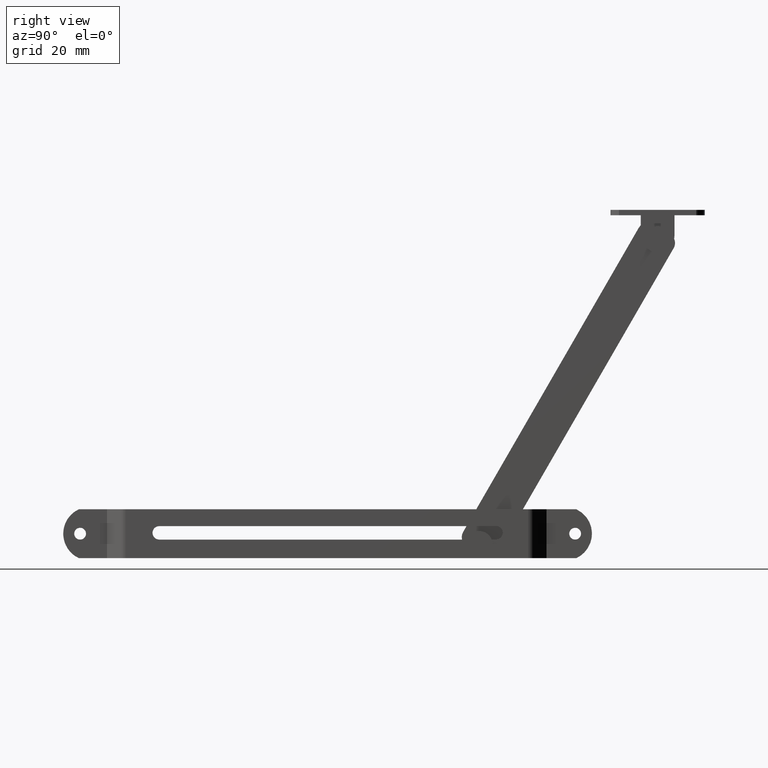
[diagram: clean part render]
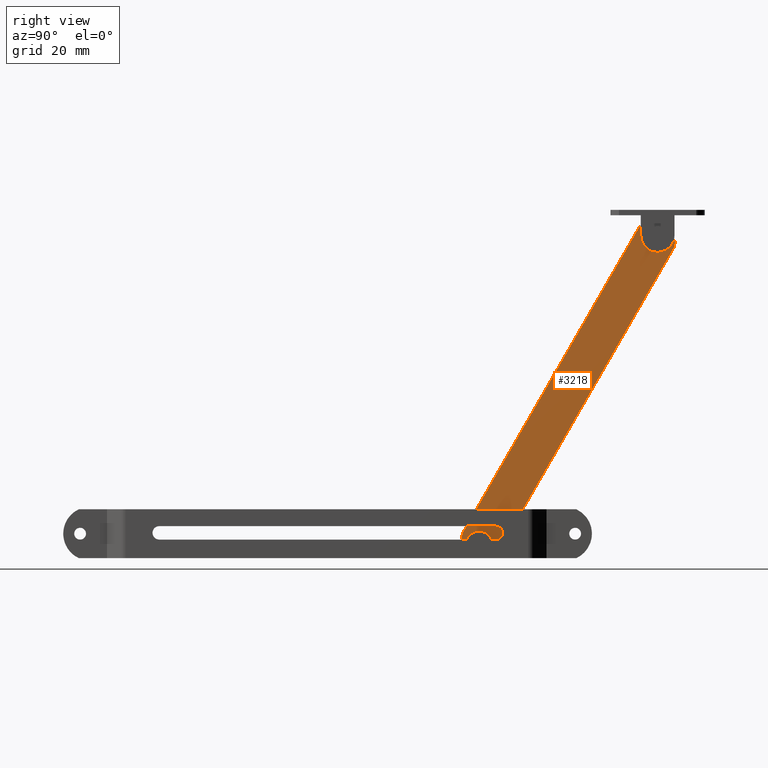
[diagram: same view with one face highlighted and labeled with its STEP entity id]
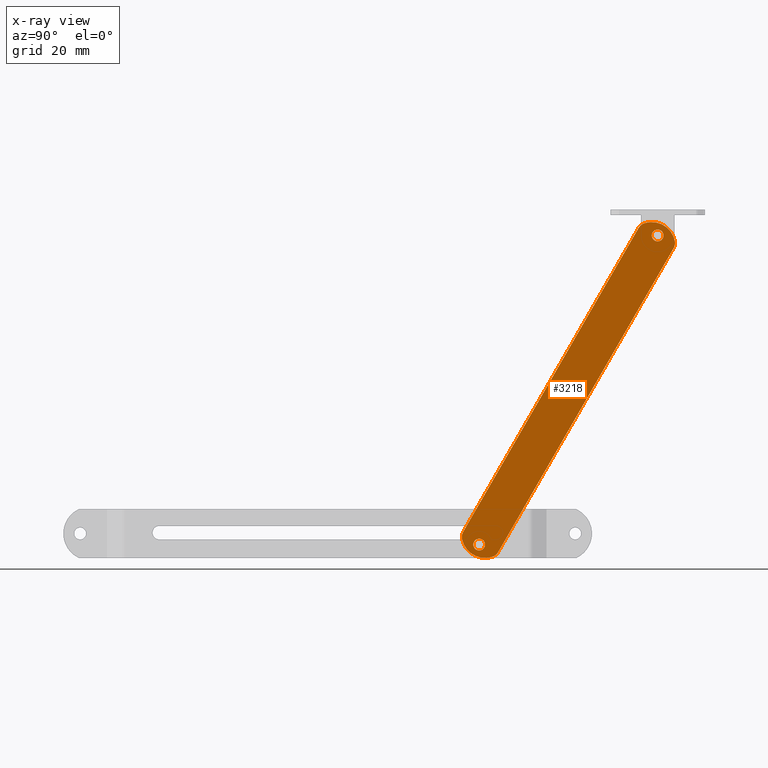
[diagram: x-ray of the same camera — body ghosted, the highlighted face saturated]
A machine part, right view. The second image highlights one B-rep face of the part: STEP entity #3218.
The next image is the same camera in x-ray: the body ghosted, the highlighted face saturated — about 0% of this face is hidden behind the body in this view.
In plain terms, the highlighted face is a freeform B-spline surface patch.
Its self-contained STEP definition (entity closure, byte-faithful):
#2741=CARTESIAN_POINT('',(4.000000000000116,22.762233328882491,88.755256439264059));
#2742=VERTEX_POINT('',#2741);
#2743=CARTESIAN_POINT('',(4.000000000000116,24.500000000000000,86.798696528455693));
#2744=VERTEX_POINT('',#2743);
#2745=CARTESIAN_POINT('',(4.000000000000116,22.762233328882491,88.755256439264059));
#2746=CARTESIAN_POINT('',(4.000000000000116,22.749999999999996,88.652338738007259));
#2747=CARTESIAN_POINT('',(4.000000000000116,22.750000000000000,88.548696528455693));
#2748=CARTESIAN_POINT('',(4.000000000000116,22.750000000000011,86.798696528455693));
#2749=CARTESIAN_POINT('',(4.000000000000116,24.500000000000000,86.798696528455693));
#2757=(BOUNDED_CURVE()B_SPLINE_CURVE(2,(#2745,#2746,#2747,#2748,#2749),.UNSPECIFIED.,.F.,.U.)B_SPLINE_CURVE_WITH_KNOTS((3,2,3),(0.229562473484709,0.250000000000000,0.500000000000000),.UNSPECIFIED.)CURVE()GEOMETRIC_REPRESENTATION_ITEM()RATIONAL_B_SPLINE_CURVE((0.956026754127251,0.976055948297405,1.0,0.707106781186547,1.0))REPRESENTATION_ITEM(''));
#2758=EDGE_CURVE('',#2742,#2744,#2757,.T.);
#2760=CARTESIAN_POINT('',(4.000000000000116,26.246735897101530,88.441861582034065));
#2761=VERTEX_POINT('',#2760);
#2762=CARTESIAN_POINT('',(4.000000000000116,24.500000000000000,86.798696528455693));
#2763=CARTESIAN_POINT('',(4.000000000000116,26.146235612863073,86.798696528455707));
#2764=CARTESIAN_POINT('',(4.000000000000116,26.246735897101534,88.441861582034065));
#2772=(BOUNDED_CURVE()B_SPLINE_CURVE(2,(#2762,#2763,#2764),.UNSPECIFIED.,.F.,.U.)B_SPLINE_CURVE_WITH_KNOTS((3,3),(0.500000000000000,0.739332961800285),.UNSPECIFIED.)CURVE()GEOMETRIC_REPRESENTATION_ITEM()RATIONAL_B_SPLINE_CURVE((1.0,0.719603993800630,0.976072040726590))REPRESENTATION_ITEM(''));
#2773=EDGE_CURVE('',#2744,#2761,#2772,.T.);
#2840=CARTESIAN_POINT('',(4.000000000000116,24.500000000000000,90.298696528455693));
#2841=VERTEX_POINT('',#2840);
#2842=CARTESIAN_POINT('',(4.000000000000116,24.500000000000000,90.298696528455693));
#2843=CARTESIAN_POINT('',(4.000000000000116,22.945694579871624,90.298696528455693));
#2844=CARTESIAN_POINT('',(4.000000000000116,22.762233328882491,88.755256439264059));
#2852=(BOUNDED_CURVE()B_SPLINE_CURVE(2,(#2842,#2843,#2844),.UNSPECIFIED.,.F.,.U.)B_SPLINE_CURVE_WITH_KNOTS((3,3),(0.0,0.229562473484709),.UNSPECIFIED.)CURVE()GEOMETRIC_REPRESENTATION_ITEM()RATIONAL_B_SPLINE_CURVE((1.0,0.731050832889143,0.956026754127251))REPRESENTATION_ITEM(''));
#2853=EDGE_CURVE('',#2841,#2742,#2852,.T.);
#2887=CARTESIAN_POINT('',(4.000000000000116,26.246735897101527,88.441861582034065));
#2888=CARTESIAN_POINT('',(4.000000000000116,26.250000000000004,88.495229190441250));
#2889=CARTESIAN_POINT('',(4.000000000000116,26.250000000000000,88.548696528455693));
#2890=CARTESIAN_POINT('',(4.000000000000116,26.250000000000000,90.298696528455693));
#2891=CARTESIAN_POINT('',(4.000000000000116,24.500000000000000,90.298696528455693));
#2899=(BOUNDED_CURVE()B_SPLINE_CURVE(2,(#2887,#2888,#2889,#2890,#2891),.UNSPECIFIED.,.F.,.U.)B_SPLINE_CURVE_WITH_KNOTS((3,2,3),(0.739332961800286,0.750000000000000,1.0),.UNSPECIFIED.)CURVE()GEOMETRIC_REPRESENTATION_ITEM()RATIONAL_B_SPLINE_CURVE((0.976072040726592,0.987502787385919,1.0,0.707106781186547,1.0))REPRESENTATION_ITEM(''));
#2900=EDGE_CURVE('',#2761,#2841,#2899,.T.);
#2927=CARTESIAN_POINT('',(4.000000000000116,-30.237766671117509,-3.043440089191623));
#2928=VERTEX_POINT('',#2927);
#2929=CARTESIAN_POINT('',(4.000000000000116,-28.500000000000000,-5.0));
#2930=VERTEX_POINT('',#2929);
#2931=CARTESIAN_POINT('',(4.000000000000116,-30.237766671117516,-3.043440089191623));
#2932=CARTESIAN_POINT('',(4.000000000000116,-30.250000000000007,-3.146357790448426));
#2933=CARTESIAN_POINT('',(4.000000000000116,-30.250000000000000,-3.250000000000000));
#2934=CARTESIAN_POINT('',(4.000000000000116,-30.250000000000011,-4.999999999999999));
#2935=CARTESIAN_POINT('',(4.000000000000116,-28.500000000000000,-5.0));
#2943=(BOUNDED_CURVE()B_SPLINE_CURVE(2,(#2931,#2932,#2933,#2934,#2935),.UNSPECIFIED.,.F.,.U.)B_SPLINE_CURVE_WITH_KNOTS((3,2,3),(0.229562473484708,0.250000000000000,0.500000000000000),.UNSPECIFIED.)CURVE()GEOMETRIC_REPRESENTATION_ITEM()RATIONAL_B_SPLINE_CURVE((0.956026754127250,0.976055948297404,1.0,0.707106781186547,1.0))REPRESENTATION_ITEM(''));
#2944=EDGE_CURVE('',#2928,#2930,#2943,.T.);
#2946=CARTESIAN_POINT('',(4.000000000000116,-26.753264102898470,-3.356834946421632));
#2947=VERTEX_POINT('',#2946);
#2948=CARTESIAN_POINT('',(4.000000000000116,-28.500000000000000,-5.0));
#2949=CARTESIAN_POINT('',(4.000000000000116,-26.853764387136927,-5.0));
#2950=CARTESIAN_POINT('',(4.000000000000116,-26.753264102898470,-3.356834946421632));
#2958=(BOUNDED_CURVE()B_SPLINE_CURVE(2,(#2948,#2949,#2950),.UNSPECIFIED.,.F.,.U.)B_SPLINE_CURVE_WITH_KNOTS((3,3),(0.500000000000000,0.739332961800285),.UNSPECIFIED.)CURVE()GEOMETRIC_REPRESENTATION_ITEM()RATIONAL_B_SPLINE_CURVE((1.0,0.719603993800630,0.976072040726590))REPRESENTATION_ITEM(''));
#2959=EDGE_CURVE('',#2930,#2947,#2958,.T.);
#3026=CARTESIAN_POINT('',(4.000000000000116,-28.500000000000000,-1.500000000000000));
#3027=VERTEX_POINT('',#3026);
#3028=CARTESIAN_POINT('',(4.000000000000116,-28.500000000000000,-1.500000000000000));
#3029=CARTESIAN_POINT('',(4.000000000000116,-30.054305420128379,-1.500000000000000));
#3030=CARTESIAN_POINT('',(4.000000000000116,-30.237766671117512,-3.043440089191623));
#3038=(BOUNDED_CURVE()B_SPLINE_CURVE(2,(#3028,#3029,#3030),.UNSPECIFIED.,.F.,.U.)B_SPLINE_CURVE_WITH_KNOTS((3,3),(0.0,0.229562473484708),.UNSPECIFIED.)CURVE()GEOMETRIC_REPRESENTATION_ITEM()RATIONAL_B_SPLINE_CURVE((1.0,0.731050832889144,0.956026754127249))REPRESENTATION_ITEM(''));
#3039=EDGE_CURVE('',#3027,#2928,#3038,.T.);
#3073=CARTESIAN_POINT('',(4.000000000000116,-26.753264102898470,-3.356834946421632));
#3074=CARTESIAN_POINT('',(4.000000000000116,-26.750000000000004,-3.303467338014431));
#3075=CARTESIAN_POINT('',(4.000000000000116,-26.750000000000000,-3.250000000000000));
#3076=CARTESIAN_POINT('',(4.000000000000116,-26.750000000000007,-1.500000000000000));
#3077=CARTESIAN_POINT('',(4.000000000000116,-28.500000000000000,-1.500000000000000));
#3085=(BOUNDED_CURVE()B_SPLINE_CURVE(2,(#3073,#3074,#3075,#3076,#3077),.UNSPECIFIED.,.F.,.U.)B_SPLINE_CURVE_WITH_KNOTS((3,2,3),(0.739332961800286,0.750000000000000,1.0),.UNSPECIFIED.)CURVE()GEOMETRIC_REPRESENTATION_ITEM()RATIONAL_B_SPLINE_CURVE((0.976072040726592,0.987502787385919,1.0,0.707106781186547,1.0))REPRESENTATION_ITEM(''));
#3086=EDGE_CURVE('',#2947,#3027,#3085,.T.);
#3091=CARTESIAN_POINT('',(4.000000000000116,-36.834805309068749,97.498608147795423));
#3092=CARTESIAN_POINT('',(4.000000000000116,32.834818790672337,97.498608147795423));
#3093=CARTESIAN_POINT('',(4.000000000000116,-36.834805309068749,-12.199905456743769));
#3094=CARTESIAN_POINT('',(4.000000000000116,32.834818790672337,-12.199905456743769));
#3095=B_SPLINE_SURFACE_WITH_KNOTS('',1,1,((#3091,#3093),(#3092,#3094)),.UNSPECIFIED.,.F.,.F.,.U.,(2,2),(2,2),(0.0,69.669624099741100),(0.0,109.698513604539200),.UNSPECIFIED.);
#3096=CARTESIAN_POINT('',(4.000000000000116,18.876715867186249,90.808899136034910));
#3097=VERTEX_POINT('',#3096);
#3098=CARTESIAN_POINT('',(4.000000000000116,-33.270734013043949,0.486848577463162));
#3099=VERTEX_POINT('',#3098);
#3100=CARTESIAN_POINT('',(4.000000000000116,18.876715867186249,90.808899136034910));
#3101=CARTESIAN_POINT('',(4.000000000000116,-33.270734013043949,0.486848577463162));
#3102=QUASI_UNIFORM_CURVE('',1,(#3100,#3101),.UNSPECIFIED.,.F.,.U.);
#3103=EDGE_CURVE('',#3097,#3099,#3102,.T.);
#3104=ORIENTED_EDGE('',*,*,#3103,.T.);
#3105=CARTESIAN_POINT('',(4.000000000000116,-33.611665901296149,-1.603658880000220));
#3106=VERTEX_POINT('',#3105);
#3107=CARTESIAN_POINT('',(4.000000000000116,-33.270734013043942,0.486848577463155));
#3108=CARTESIAN_POINT('',(4.000000000000116,-33.835588970110109,-0.494085939965296));
#3109=CARTESIAN_POINT('',(4.000000000000116,-33.611665901296142,-1.603658880000217));
#3117=(BOUNDED_CURVE()B_SPLINE_CURVE(2,(#3107,#3108,#3109),.UNSPECIFIED.,.F.,.U.)CURVE()GEOMETRIC_REPRESENTATION_ITEM()QUASI_UNIFORM_CURVE()RATIONAL_B_SPLINE_CURVE((1.0,0.935615424583419,1.0))REPRESENTATION_ITEM(''));
#3118=EDGE_CURVE('',#3099,#3106,#3117,.T.);
#3119=ORIENTED_EDGE('',*,*,#3118,.T.);
#3120=CARTESIAN_POINT('',(4.000000000000116,-24.518399130458249,-6.853656767779230));
#3121=VERTEX_POINT('',#3120);
#3122=CARTESIAN_POINT('',(4.000000000000116,-33.611665901296149,-1.603658880000220));
#3123=CARTESIAN_POINT('',(4.000000000000116,-32.986564257523483,-4.701125228953905));
#3124=CARTESIAN_POINT('',(4.000000000000116,-30.249999147351978,-6.281081318767616));
#3125=CARTESIAN_POINT('',(4.000000000000116,-27.513434037180470,-7.861037408581329));
#3126=CARTESIAN_POINT('',(4.000000000000116,-24.518399130458238,-6.853656767779274));
#3134=(BOUNDED_CURVE()B_SPLINE_CURVE(2,(#3122,#3123,#3124,#3125,#3126),.UNSPECIFIED.,.F.,.U.)B_SPLINE_CURVE_WITH_KNOTS((3,2,3),(0.0,0.500000000000000,1.0),.UNSPECIFIED.)CURVE()GEOMETRIC_REPRESENTATION_ITEM()RATIONAL_B_SPLINE_CURVE((1.0,0.911437859898743,1.0,0.911437859898743,1.0))REPRESENTATION_ITEM(''));
#3135=EDGE_CURVE('',#3106,#3121,#3134,.T.);
#3136=ORIENTED_EDGE('',*,*,#3135,.T.);
#3137=CARTESIAN_POINT('',(4.000000000000116,-22.870826358273149,-5.499931659359730));
#3138=VERTEX_POINT('',#3137);
#3139=CARTESIAN_POINT('',(4.000000000000116,-24.518399130458249,-6.853656767779230));
#3140=CARTESIAN_POINT('',(4.000000000000116,-23.437255528363767,-6.490014403721759));
#3141=CARTESIAN_POINT('',(4.000000000000116,-22.870826358273149,-5.499931659359730));
#3149=(BOUNDED_CURVE()B_SPLINE_CURVE(2,(#3139,#3140,#3141),.UNSPECIFIED.,.F.,.U.)CURVE()GEOMETRIC_REPRESENTATION_ITEM()QUASI_UNIFORM_CURVE()RATIONAL_B_SPLINE_CURVE((1.0,0.934715189352757,1.0))REPRESENTATION_ITEM(''));
#3150=EDGE_CURVE('',#3121,#3138,#3149,.T.);
#3151=ORIENTED_EDGE('',*,*,#3150,.T.);
#3152=CARTESIAN_POINT('',(4.000000000000116,29.269043000000000,84.808898999999997));
#3153=VERTEX_POINT('',#3152);
#3154=CARTESIAN_POINT('',(4.000000000000116,-22.870826358273149,-5.499931659359730));
#3155=CARTESIAN_POINT('',(4.000000000000116,29.269043000000000,84.808898999999997));
#3156=QUASI_UNIFORM_CURVE('',1,(#3154,#3155),.UNSPECIFIED.,.F.,.U.);
#3157=EDGE_CURVE('',#3138,#3153,#3156,.T.);
#3158=ORIENTED_EDGE('',*,*,#3157,.T.);
#3159=CARTESIAN_POINT('',(4.000000000000116,29.611672901296050,86.902364880000107));
#3160=VERTEX_POINT('',#3159);
#3161=CARTESIAN_POINT('',(4.000000000000116,29.269043000000000,84.808898999999997));
#3162=CARTESIAN_POINT('',(4.000000000000116,29.835984399760708,85.790879998287480));
#3163=CARTESIAN_POINT('',(4.000000000000116,29.611672901296050,86.902364880000107));
#3171=(BOUNDED_CURVE()B_SPLINE_CURVE(2,(#3161,#3162,#3163),.UNSPECIFIED.,.F.,.U.)CURVE()GEOMETRIC_REPRESENTATION_ITEM()QUASI_UNIFORM_CURVE()RATIONAL_B_SPLINE_CURVE((1.0,0.935414576505110,1.0))REPRESENTATION_ITEM(''));
#3172=EDGE_CURVE('',#3153,#3160,#3171,.T.);
#3173=ORIENTED_EDGE('',*,*,#3172,.T.);
#3174=CARTESIAN_POINT('',(4.000000000000116,20.518399130458150,92.152362767779110));
#3175=VERTEX_POINT('',#3174);
#3176=CARTESIAN_POINT('',(4.000000000000116,29.611672901296050,86.902364880000107));
#3177=CARTESIAN_POINT('',(4.000000000000116,28.986570885729016,89.999831579057300));
#3178=CARTESIAN_POINT('',(4.000000000000116,26.250003382653912,91.579787706297623));
#3179=CARTESIAN_POINT('',(4.000000000000116,23.513435879578807,93.159743833537931));
#3180=CARTESIAN_POINT('',(4.000000000000116,20.518399130458150,92.152362767779110));
#3188=(BOUNDED_CURVE()B_SPLINE_CURVE(2,(#3176,#3177,#3178,#3179,#3180),.UNSPECIFIED.,.F.,.U.)B_SPLINE_CURVE_WITH_KNOTS((3,2,3),(0.0,0.500000000000000,1.0),.UNSPECIFIED.)CURVE()GEOMETRIC_REPRESENTATION_ITEM()RATIONAL_B_SPLINE_CURVE((1.0,0.911437839550877,1.0,0.911437839550877,1.0))REPRESENTATION_ITEM(''));
#3189=EDGE_CURVE('',#3160,#3175,#3188,.T.);
#3190=ORIENTED_EDGE('',*,*,#3189,.T.);
#3191=CARTESIAN_POINT('',(4.000000000000116,20.518399130458150,92.152362767779110));
#3192=CARTESIAN_POINT('',(4.000000000000116,19.443665137691561,91.790880649074538));
#3193=CARTESIAN_POINT('',(4.000000000000116,18.876715867186249,90.808899136034910));
#3201=(BOUNDED_CURVE()B_SPLINE_CURVE(2,(#3191,#3192,#3193),.UNSPECIFIED.,.F.,.U.)CURVE()GEOMETRIC_REPRESENTATION_ITEM()QUASI_UNIFORM_CURVE()RATIONAL_B_SPLINE_CURVE((1.0,0.935413974207661,1.0))REPRESENTATION_ITEM(''));
#3202=EDGE_CURVE('',#3175,#3097,#3201,.T.);
#3203=ORIENTED_EDGE('',*,*,#3202,.T.);
#3204=EDGE_LOOP('',(#3104,#3119,#3136,#3151,#3158,#3173,#3190,#3203));
#3205=FACE_OUTER_BOUND('',#3204,.T.);
#3206=ORIENTED_EDGE('',*,*,#2959,.F.);
#3207=ORIENTED_EDGE('',*,*,#2944,.F.);
#3208=ORIENTED_EDGE('',*,*,#3039,.F.);
#3209=ORIENTED_EDGE('',*,*,#3086,.F.);
#3210=EDGE_LOOP('',(#3206,#3207,#3208,#3209));
#3211=FACE_BOUND('',#3210,.T.);
#3212=ORIENTED_EDGE('',*,*,#2773,.F.);
#3213=ORIENTED_EDGE('',*,*,#2758,.F.);
#3214=ORIENTED_EDGE('',*,*,#2853,.F.);
#3215=ORIENTED_EDGE('',*,*,#2900,.F.);
#3216=EDGE_LOOP('',(#3212,#3213,#3214,#3215));
#3217=FACE_BOUND('',#3216,.T.);
#3218=ADVANCED_FACE('',(#3205,#3211,#3217),#3095,.F.);